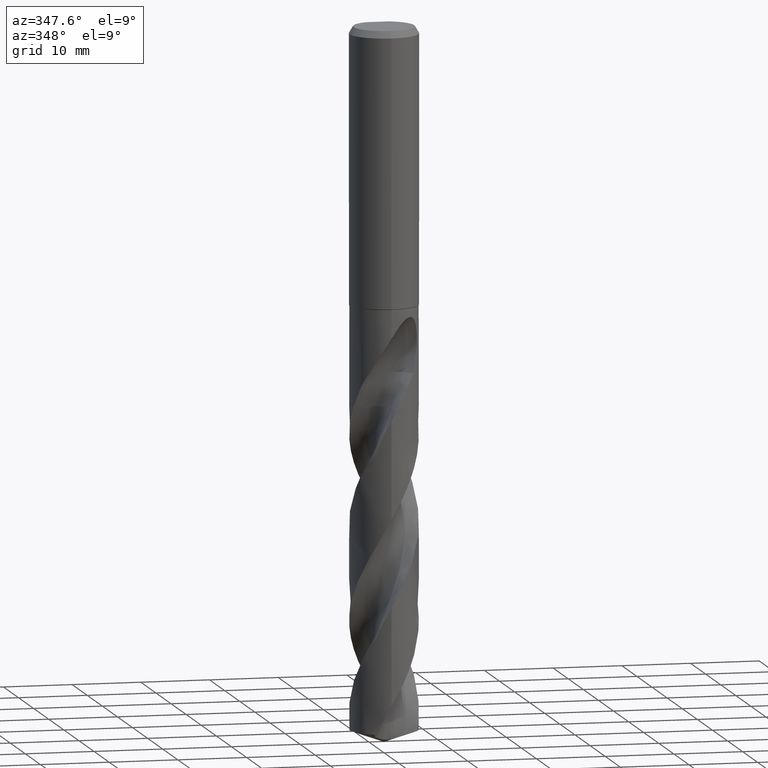
[diagram: clean part render]
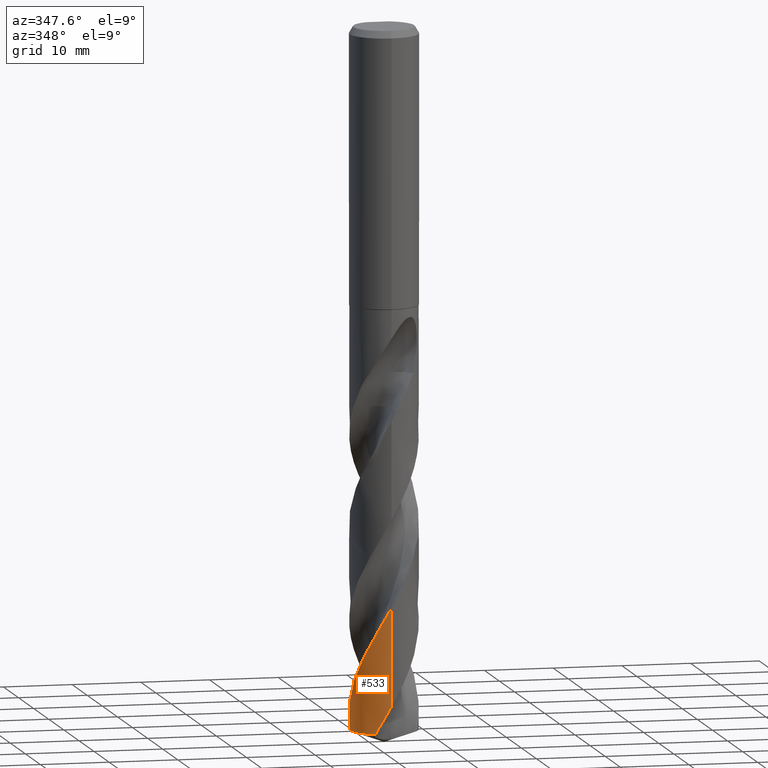
[diagram: same view with one face highlighted and labeled with its STEP entity id]
A machine part, auxiliary view. The second image highlights one B-rep face of the part: STEP entity #533.
In plain terms, the highlighted conical surface has half-angle 0 deg.
Its self-contained STEP definition (entity closure, byte-faithful):
#319=VERTEX_POINT('',#894);
#501=EDGE_CURVE('',#679,#319,#1085,.T.);
#533=ADVANCED_FACE('',(#1119),#1120,.T.);
#599=EDGE_CURVE('',#691,#679,#1192,.T.);
#679=VERTEX_POINT('',#1283);
#685=EDGE_CURVE('',#319,#693,#1289,.T.);
#691=VERTEX_POINT('',#1296);
#693=VERTEX_POINT('',#1298);
#803=EDGE_CURVE('',#691,#693,#1420,.T.);
#894=CARTESIAN_POINT('',(8.13646197697888E-012,-4.949961128675,-83.0072096497255));
#1085=LINE('',#4510,#4511);
#1119=FACE_OUTER_BOUND('',#4631,.T.);
#1120=CONICAL_SURFACE('',#4632,4.94995,2.13682759504895E-006);
#1192=B_SPLINE_CURVE_WITH_KNOTS('',3,(#5545,#5546,#5547,#5548,#5549,#5550,#5551,#5552,#5553,#5554,#5555,#5556,#5557,#5558,#5559,#5560,#5561,#5562,#5563,#5564,#5565,#5566,#5567,#5568,#5569,#5570,#5571,#5572,#5573,#5574,#5575,#5576,#5577,#5578,#5579,#5580,#5581,#5582,#5583,#5584,#5585,#5586,#5587,#5588,#5589,#5590,#5591,#5592,#5593,#5594,#5595,#5596,#5597,#5598,#5599,#5600,#5601,#5602,#5603,#5604,#5605,#5606,#5607,#5608,#5609,#5610,#5611,#5612),.UNSPECIFIED.,.F.,.F.,(4,2,2,2,2,2,2,2,2,2,2,2,2,2,2,2,2,2,2,2,2,2,2,2,2,2,2,2,2,2,2,2,2,4),(0.0,2.95396944110881,5.28989457424322,5.94457461234737,7.85927152541722,10.3076145911733,13.3820180529097,13.4342824440581,16.8709089554857,17.5327680101745,20.463874669371,21.5228505686648,23.4461732904978,24.3942358476511,25.4818067649035,27.3189469209078,30.2260025828636,31.540748809011,33.8656376018781,36.479405420745,36.9352157420846,39.8818853183741,41.1502282296475,43.4246927602005,46.1318109732281,48.1775151104775,48.5595118764898,49.9977214088226,50.5367277501817,51.4810402510671,52.8975913003521,53.6051296029751,53.9582888289968,54.3120357394263),.UNSPECIFIED.);
#1283=CARTESIAN_POINT('',(-3.43353931960499E-014,-4.94999144659621,-97.1954957260998));
#1289=B_SPLINE_CURVE_WITH_KNOTS('',3,(#6580,#6581,#6582,#6583,#6584,#6585,#6586,#6587,#6588,#6589,#6590,#6591,#6592,#6593,#6594,#6595,#6596,#6597,#6598,#6599,#6600,#6601,#6602,#6603,#6604,#6605,#6606,#6607,#6608,#6609,#6610,#6611,#6612,#6613,#6614,#6615,#6616,#6617,#6618,#6619,#6620,#6621,#6622,#6623,#6624,#6625,#6626,#6627,#6628,#6629,#6630,#6631,#6632,#6633,#6634,#6635,#6636,#6637),.UNSPECIFIED.,.F.,.F.,(4,2,2,2,2,2,2,2,2,2,2,2,2,2,2,2,2,2,2,2,2,2,2,2,2,2,2,2,4),(0.0,0.471830024870291,5.37697621048738,6.33167472662314,9.36972604740136,10.0910892843186,12.6199298902539,14.5249329743223,16.423769062485,18.3316915458444,20.2280767722324,22.1395679275063,23.9490003149199,25.8676599423328,29.0660161791141,29.1914357035232,31.1917215826455,32.1543154913817,34.0405071876441,35.9442927356464,37.8364453001447,39.7379676731935,41.5100212833283,43.064821643279,45.8172123242273,47.8737062211974,49.4122721769235,51.7388134704482,54.0760218006654),.UNSPECIFIED.);
#1296=CARTESIAN_POINT('',(-2.22935091695267,-4.41955817804023,-101.198347340382));
#1298=CARTESIAN_POINT('',(-4.21385213440391,2.59729670799846,-101.198347340382));
#1420=CIRCLE('',#8246,4.95);
#4510=CARTESIAN_POINT('',(6.07125268933412E-016,-4.94995,-77.7991736701912));
#4511=VECTOR('',#9243,1.0);
#4631=EDGE_LOOP('',(#9267,#9268,#9269,#9270));
#4632=AXIS2_PLACEMENT_3D('',#9271,#9272,#9273);
#5545=CARTESIAN_POINT('',(-2.22935091695266,-4.4195581780402,-101.198347340382));
#5546=CARTESIAN_POINT('',(-1.79165276769674,-4.64034353681386,-100.344402061209));
#5547=CARTESIAN_POINT('',(-1.32142423303132,-4.79588171073864,-99.4939432099212));
#5548=CARTESIAN_POINT('',(-0.449181932684798,-4.9450337474409,-97.9670830996688));
#5549=CARTESIAN_POINT('',(-0.0584864454376092,-4.96489824825402,-97.299645748127));
#5550=CARTESIAN_POINT('',(0.438262577509836,-4.9317545706241,-96.4351454277494));
#5551=CARTESIAN_POINT('',(0.546446478820447,-4.92093583471272,-96.2455297629822));
#5552=CARTESIAN_POINT('',(0.969353037893978,-4.86454717076001,-95.5036312141426));
#5553=CARTESIAN_POINT('',(1.28047632889718,-4.79216934963184,-94.9547379271962));
#5554=CARTESIAN_POINT('',(1.97047428458111,-4.55923015477065,-93.6975812111948));
#5555=CARTESIAN_POINT('',(2.33957269064366,-4.38118568037121,-92.9899088817627));
#5556=CARTESIAN_POINT('',(3.11215839226151,-3.88311855390258,-91.3981122339455));
#5557=CARTESIAN_POINT('',(3.49577147671498,-3.54138735878977,-90.5272195620004));
#5558=CARTESIAN_POINT('',(3.82531167549935,-3.1415475124881,-89.6251349228411));
#5559=CARTESIAN_POINT('',(3.83080457268415,-3.13484719159557,-89.6100486458373));
#5560=CARTESIAN_POINT('',(4.19791995735567,-2.68461357814803,-88.5988248074707));
#5561=CARTESIAN_POINT('',(4.48002890560143,-2.18172705725621,-87.6248687968382));
#5562=CARTESIAN_POINT('',(4.70660017340653,-1.53697183887258,-86.4392516618976));
#5563=CARTESIAN_POINT('',(4.73961951774328,-1.43188523666867,-86.2474008241071));
#5564=CARTESIAN_POINT('',(4.89959865913834,-0.856445804671472,-85.2094989622824));
#5565=CARTESIAN_POINT('',(4.96020006143069,-0.37001454730818,-84.3765665062017));
#5566=CARTESIAN_POINT('',(4.9443466395271,0.294394288622303,-83.2258191989968));
#5567=CARTESIAN_POINT('',(4.93072696755743,0.469999178536565,-82.9193049502784));
#5568=CARTESIAN_POINT('',(4.86635050309687,0.960471052574037,-82.0602955893343));
#5569=CARTESIAN_POINT('',(4.79427688073582,1.27265509998457,-81.5102929838343));
#5570=CARTESIAN_POINT('',(4.64194190193651,1.72608959460042,-80.6847189939374));
#5571=CARTESIAN_POINT('',(4.58457502122413,1.87311057331992,-80.4125067500395));
#5572=CARTESIAN_POINT('',(4.4467639630378,2.18196892708571,-79.8267027933623));
#5573=CARTESIAN_POINT('',(4.36432478289759,2.34247226350076,-79.5125608262318));
#5574=CARTESIAN_POINT('',(4.11979161614844,2.76079337228834,-78.6715804136077));
#5575=CARTESIAN_POINT('',(3.94200574142779,3.00931552075771,-78.1468010220629));
#5576=CARTESIAN_POINT('',(3.42543641633327,3.60585327882352,-76.7848679728131));
#5577=CARTESIAN_POINT('',(3.05737093804333,3.92274146012613,-75.9470134252313));
#5578=CARTESIAN_POINT('',(2.46463862140751,4.29828416317934,-74.7344549093915));
#5579=CARTESIAN_POINT('',(2.27248214820728,4.40290146540469,-74.3581074292385));
#5580=CARTESIAN_POINT('',(1.72301803209136,4.6564511889217,-73.3129603342535));
#5581=CARTESIAN_POINT('',(1.35478063825027,4.77655625885797,-72.6418275619969));
#5582=CARTESIAN_POINT('',(0.550849112854352,4.93829832991235,-71.2234035394332));
#5583=CARTESIAN_POINT('',(0.116707536700317,4.96741252167313,-70.4820687420746));
#5584=CARTESIAN_POINT('',(-0.390053340689426,4.93511656924002,-69.5996065877379));
#5585=CARTESIAN_POINT('',(-0.465052952841175,4.92861483601055,-69.4684555240162));
#5586=CARTESIAN_POINT('',(-1.02475251245293,4.86718339106055,-68.4899100366377));
#5587=CARTESIAN_POINT('',(-1.49929180989636,4.74264605626818,-67.6562354152189));
#5588=CARTESIAN_POINT('',(-2.14183702507023,4.46749793248361,-66.4460174232056));
#5589=CARTESIAN_POINT('',(-2.3293294242589,4.37264689041839,-66.0802957182945));
#5590=CARTESIAN_POINT('',(-2.83465495361677,4.07530998145247,-65.0635303896029));
#5591=CARTESIAN_POINT('',(-3.13651378636396,3.84789079225064,-64.4172705012243));
#5592=CARTESIAN_POINT('',(-3.73532542969799,3.27880554298764,-62.9892278197278));
#5593=CARTESIAN_POINT('',(-4.01717565491629,2.92677067046014,-62.2094111391407));
#5594=CARTESIAN_POINT('',(-4.42226080685315,2.24958078154198,-60.8473035730422));
#5595=CARTESIAN_POINT('',(-4.56580268559235,1.94152010784744,-60.2653811398848));
#5596=CARTESIAN_POINT('',(-4.69733578345308,1.56225656016275,-59.5687227459253));
#5597=CARTESIAN_POINT('',(-4.71686011556016,1.50227550174337,-59.4590351412436));
#5598=CARTESIAN_POINT('',(-4.80446965209793,1.21455787608548,-58.9368279561098));
#5599=CARTESIAN_POINT('',(-4.85729981030446,0.982314435496317,-58.5258559720658));
#5600=CARTESIAN_POINT('',(-4.90669753615402,0.658687571017366,-57.9590671701964));
#5601=CARTESIAN_POINT('',(-4.9177745138221,0.570124717454307,-57.8044596094333));
#5602=CARTESIAN_POINT('',(-4.9416562671222,0.325664991465328,-57.3792630343069));
#5603=CARTESIAN_POINT('',(-4.94948375705588,0.169334493460146,-57.1089844062348));
#5604=CARTESIAN_POINT('',(-4.95049590859427,-0.221960310053079,-56.4324637925119));
#5605=CARTESIAN_POINT('',(-4.93439486134423,-0.456412517069067,-56.0266527104689));
#5606=CARTESIAN_POINT('',(-4.8854569538116,-0.804716365903502,-55.4179336481504));
#5607=CARTESIAN_POINT('',(-4.86505864732971,-0.92000021369965,-55.215343968869));
#5608=CARTESIAN_POINT('',(-4.82843364278489,-1.09140038565571,-54.9111583583929));
#5609=CARTESIAN_POINT('',(-4.81524385622845,-1.14818835356132,-54.809876089646));
#5610=CARTESIAN_POINT('',(-4.78687465635019,-1.26124855559345,-54.6070097395443));
#5611=CARTESIAN_POINT('',(-4.77178021687419,-1.31719211920776,-54.5058689259694));
#5612=CARTESIAN_POINT('',(-4.7556798869759,-1.37295991334815,-54.4047767455374));
#6580=CARTESIAN_POINT('',(-0.967693718980683,4.8543875977973,-54.4034698992135));
#6581=CARTESIAN_POINT('',(-0.890521857389156,4.86977165285677,-54.5396454737997));
#6582=CARTESIAN_POINT('',(-0.813022401764986,4.88330759424958,-54.6758688584026));
#6583=CARTESIAN_POINT('',(0.0731013763548195,5.01641358870921,-56.2280105614193));
#6584=CARTESIAN_POINT('',(0.899443406654452,4.9357662009484,-57.6219430898445));
#6585=CARTESIAN_POINT('',(1.81944762820888,4.60614534780597,-59.3130356497665));
#6586=CARTESIAN_POINT('',(1.96660360097477,4.54526255569411,-59.5882078222602));
#6587=CARTESIAN_POINT('',(2.56858425135901,4.26150653133135,-60.7408122201753));
#6588=CARTESIAN_POINT('',(2.99111423947087,3.97642188980315,-61.613406724512));
#6589=CARTESIAN_POINT('',(3.45143919733126,3.55017524779599,-62.6983197201717));
#6590=CARTESIAN_POINT('',(3.53671371254619,3.46522977035799,-62.9063113372976));
#6591=CARTESIAN_POINT('',(3.90652606829732,3.06897525274484,-63.8446422584266));
#6592=CARTESIAN_POINT('',(4.15381980130456,2.72499705942811,-64.5732656748247));
#6593=CARTESIAN_POINT('',(4.50566958290491,2.07406922113138,-65.853293281488));
#6594=CARTESIAN_POINT('',(4.62946609416006,1.78063910118775,-66.4013299332275));
#6595=CARTESIAN_POINT('',(4.81876288033203,1.17538396002783,-67.4999413329007));
#6596=CARTESIAN_POINT('',(4.88410712823062,0.864711556584493,-68.0473604006994));
#6597=CARTESIAN_POINT('',(4.95467257834578,0.233312816704229,-69.1464676936432));
#6598=CARTESIAN_POINT('',(4.95940475702793,-0.0856408035688894,-69.6953336431081));
#6599=CARTESIAN_POINT('',(4.90780354175445,-0.717842154836708,-70.7941935279654));
#6600=CARTESIAN_POINT('',(4.85192979570399,-1.02996600805463,-71.3410249035415));
#6601=CARTESIAN_POINT('',(4.68055213362468,-1.64198359534854,-72.4405877972815));
#6602=CARTESIAN_POINT('',(4.56507000747351,-1.94001175074537,-72.990438468437));
#6603=CARTESIAN_POINT('',(4.28618887209219,-2.49430493657609,-74.0653176710405));
#6604=CARTESIAN_POINT('',(4.12614542383073,-2.75101267963431,-74.5872932224951));
#6605=CARTESIAN_POINT('',(3.75007467480491,-3.24676049942791,-75.6639819036374));
#6606=CARTESIAN_POINT('',(3.53231403639764,-3.48240462054326,-76.2158006243053));
#6607=CARTESIAN_POINT('',(2.89515609152771,-4.05026656435963,-77.6940951294267));
#6608=CARTESIAN_POINT('',(2.44187508257227,-4.33871645466996,-78.6121936932441));
#6609=CARTESIAN_POINT('',(1.93183045519467,-4.55746773384483,-79.572094591292));
#6610=CARTESIAN_POINT('',(1.91253513117893,-4.5655986632474,-79.6083101739255));
#6611=CARTESIAN_POINT('',(1.58460308042744,-4.70134337901714,-80.2223432295159));
#6612=CARTESIAN_POINT('',(1.2639497017836,-4.79749559998523,-80.7999732820629));
#6613=CARTESIAN_POINT('',(0.778346775890403,-4.89101992194696,-81.6561213512516));
#6614=CARTESIAN_POINT('',(0.619141721332082,-4.91371604159111,-81.9340342653018));
#6615=CARTESIAN_POINT('',(0.145373946821146,-4.95784502405188,-82.7570144454393));
#6616=CARTESIAN_POINT('',(-0.170189251165281,-4.95703217560484,-83.3004392359163));
#6617=CARTESIAN_POINT('',(-0.799423347458539,-4.89529708612494,-84.3958216387234));
#6618=CARTESIAN_POINT('',(-1.11197761407352,-4.83391923731825,-84.9448484245989));
#6619=CARTESIAN_POINT('',(-1.71948095798408,-4.65246664926272,-86.0415181220271));
#6620=CARTESIAN_POINT('',(-2.01276381267828,-4.5332797584511,-86.5865544765734));
#6621=CARTESIAN_POINT('',(-2.57371086480666,-4.24014958509715,-87.6830615643437));
#6622=CARTESIAN_POINT('',(-2.84027164416855,-4.06644378820728,-88.2315246038419));
#6623=CARTESIAN_POINT('',(-3.3197956871384,-3.68358755527901,-89.2929162424132));
#6624=CARTESIAN_POINT('',(-3.5339370925998,-3.47864492950366,-89.8033111748133));
#6625=CARTESIAN_POINT('',(-3.89906456376644,-3.06053520747916,-90.7649754540075));
#6626=CARTESIAN_POINT('',(-4.05414652243153,-2.85194411385464,-91.2139855826129));
#6627=CARTESIAN_POINT('',(-4.43657305663157,-2.24284507559603,-92.4587747761907));
#6628=CARTESIAN_POINT('',(-4.62549320250807,-1.82157172607792,-93.2493420572373));
#6629=CARTESIAN_POINT('',(-4.84930504456789,-1.05089605522699,-94.6393800130807));
#6630=CARTESIAN_POINT('',(-4.91053957916618,-0.712065696752969,-95.231945493538));
#6631=CARTESIAN_POINT('',(-4.95537016989631,-0.113072131510627,-96.2706673218063));
#6632=CARTESIAN_POINT('',(-4.95454155581346,0.144149700165289,-96.7145040212544));
#6633=CARTESIAN_POINT('',(-4.9024570706905,0.786720733636134,-97.8319686798628));
#6634=CARTESIAN_POINT('',(-4.82570202917164,1.16882447230295,-98.502568880069));
#6635=CARTESIAN_POINT('',(-4.58354334676286,1.90947595766407,-99.8502067802905));
#6636=CARTESIAN_POINT('',(-4.41870295740018,2.26494414338967,-100.522916145618));
#6637=CARTESIAN_POINT('',(-4.21385213440391,2.59729670799847,-101.198347340382));
#8246=AXIS2_PLACEMENT_3D('',#9580,#9581,#9582);
#9243=DIRECTION('',(-2.61677264991795E-022,2.13682759504733E-006,0.999999999997717));
#9267=ORIENTED_EDGE('',*,*,#501,.T.);
#9268=ORIENTED_EDGE('',*,*,#685,.T.);
#9269=ORIENTED_EDGE('',*,*,#803,.F.);
#9270=ORIENTED_EDGE('',*,*,#599,.T.);
#9271=CARTESIAN_POINT('',(0.0,0.0,-77.7991736701912));
#9272=DIRECTION('',(0.0,-0.0,-1.0));
#9273=DIRECTION('',(0.0,1.0,0.0));
#9580=CARTESIAN_POINT('',(0.0,0.0,-101.198347340382));
#9581=DIRECTION('',(0.0,0.0,-1.0));
#9582=DIRECTION('',(0.0,1.0,0.0));